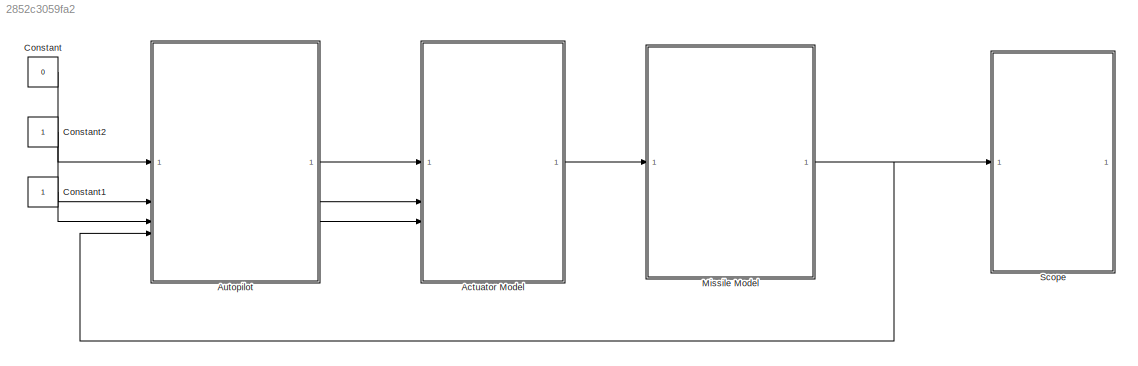
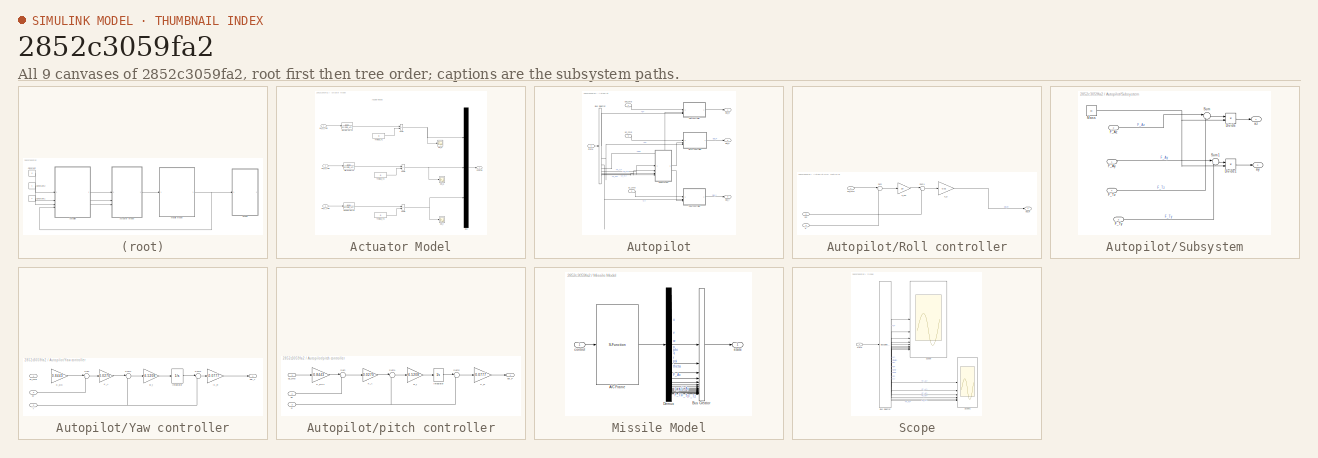
[diagram: thumbnail index - all 9 canvases of the model, root first then tree order]
MODEL slx_2852c3059fa2
KIND model
CONFIG AbsTol = auto
CONFIG EnableMultiTasking = off
CONFIG FixedStep = 0.01
CONFIG InitFcn = clc, clear, close all\nUAV_Data\nSim_Parameters
CONFIG MaxStep = auto
CONFIG MinStep = auto
CONFIG RelTol = 1e-3
CONFIG SampleTimeConstraint = Unconstrained
CONFIG SolverName = ode4
CONFIG StartTime = 0.0
CONFIG StopTime = 10.0
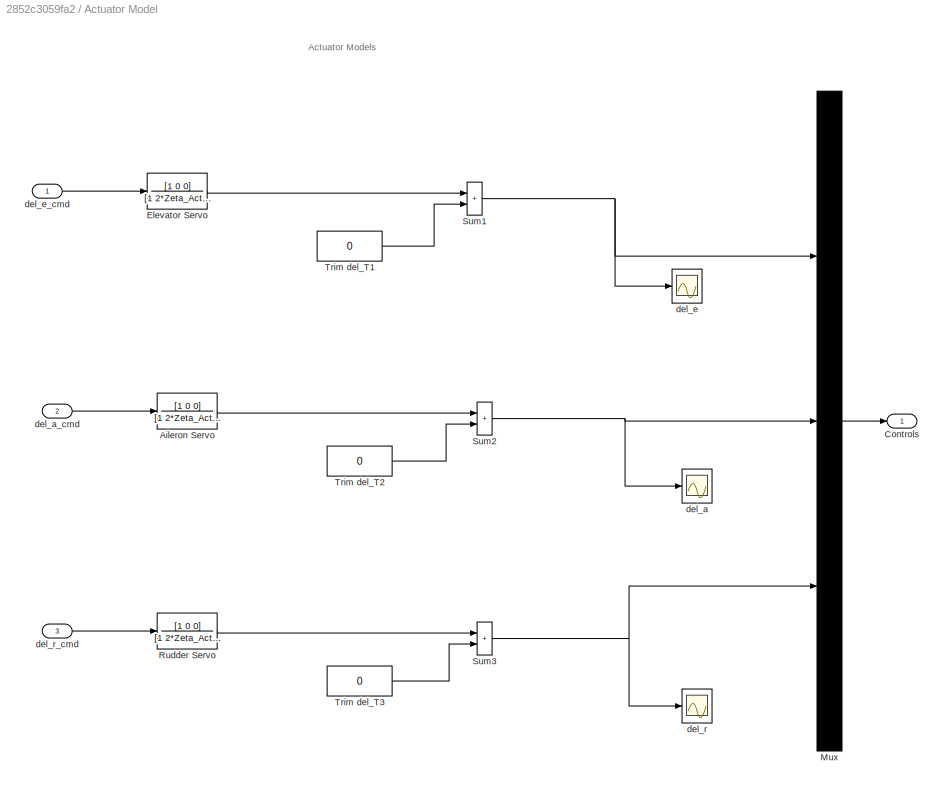
BLOCK [SubSystem] Actuator Model
BLOCK [TransferFcn] Actuator Model/Aileron Servo
  Denominator = [1 2*Zeta_Act*Wn_Act Wn_Act^2]
  Numerator = [1 0 0]
BLOCK [Outport] Actuator Model/Controls
BLOCK [TransferFcn] Actuator Model/Elevator Servo
  Denominator = [1 2*Zeta_Act*Wn_Act Wn_Act^2]
  Numerator = [1 0 0]
BLOCK [Mux] Actuator Model/Mux
  DisplayOption = bar
  Inputs = 3
BLOCK [TransferFcn] Actuator Model/Rudder Servo
  Denominator = [1 2*Zeta_Act*Wn_Act Wn_Act^2]
  Numerator = [1 0 0]
BLOCK [Sum] Actuator Model/Sum1
  IconShape = rectangular
  SaturateOnIntegerOverflow = on
BLOCK [Sum] Actuator Model/Sum2
  IconShape = rectangular
  SaturateOnIntegerOverflow = on
BLOCK [Sum] Actuator Model/Sum3
  IconShape = rectangular
  SaturateOnIntegerOverflow = on
BLOCK [Constant] Actuator Model/Trim del_T1
  Value = 0
BLOCK [Constant] Actuator Model/Trim del_T2
  Value = 0
BLOCK [Constant] Actuator Model/Trim del_T3
  Value = 0
BLOCK [Scope] Actuator Model/del_a
  Floating = off
  NumInputPorts = 1
  ScopeSpecificationString = Simulink.scopes.TimeScopeBlockCfg('CurrentConfiguration', extmgr.ConfigurationSet(extmgr.Configuration('Core','General UI',true),extmgr.Configuration('Core','Source UI',true),extmgr.Configuration('Sources','WiredSimulink',true,'DataLoggingVariableName','ScopeData3'),extmgr.Configuration('Visuals','Time Domain',true,'SerializedDisplays',{struct('MinYLimReal','-0.000008','MaxYLimReal','0.000039','YL...<+1371ch>
BLOCK [Inport] Actuator Model/del_a_cmd
  Port = 2
BLOCK [Scope] Actuator Model/del_e
  Floating = off
  NumInputPorts = 1
  ScopeSpecificationString = Simulink.scopes.TimeScopeBlockCfg('CurrentConfiguration', extmgr.ConfigurationSet(extmgr.Configuration('Core','General UI',true),extmgr.Configuration('Core','Source UI',true),extmgr.Configuration('Sources','WiredSimulink',true,'DataLoggingVariableName','ScopeData2'),extmgr.Configuration('Visuals','Time Domain',true,'SerializedDisplays',{struct('MinYLimReal','-1.00000','MaxYLimReal','1.00000','YLab...<+1363ch>
BLOCK [Inport] Actuator Model/del_e_cmd
BLOCK [Scope] Actuator Model/del_r
  Floating = off
  NumInputPorts = 1
  ScopeSpecificationString = Simulink.scopes.TimeScopeBlockCfg('CurrentConfiguration', extmgr.ConfigurationSet(extmgr.Configuration('Core','General UI',true),extmgr.Configuration('Core','Source UI',true),extmgr.Configuration('Sources','WiredSimulink',true,'DataLoggingVariableName','ScopeData4'),extmgr.Configuration('Visuals','Time Domain',true,'SerializedDisplays',{struct('MinYLimReal','-10','MaxYLimReal','10','YLabelReal',''...<+1317ch>
BLOCK [Inport] Actuator Model/del_r_cmd
  Port = 3
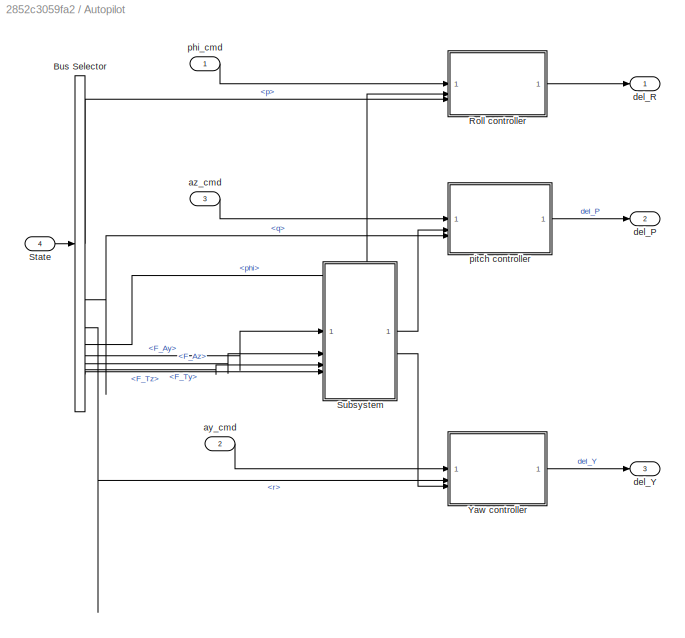
BLOCK [SubSystem] Autopilot
BLOCK [BusSelector] Autopilot/Bus Selector
  OutputSignals = p,q,r,phi,F_Ay,F_Az,F_Ty,F_Tz
BLOCK [SubSystem] Autopilot/Roll controller
BLOCK [Gain] Autopilot/Roll controller/K_p
  Gain = 0.01
BLOCK [Gain] Autopilot/Roll controller/K_phi
  Gain = 20
BLOCK [Sum] Autopilot/Roll controller/Sum
  Inputs = |+-
BLOCK [Sum] Autopilot/Roll controller/Sum1
  Inputs = |+-
BLOCK [Outport] Autopilot/Roll controller/del_R
BLOCK [Inport] Autopilot/Roll controller/p
  Port = 3
BLOCK [Inport] Autopilot/Roll controller/phi
  Port = 2
BLOCK [Inport] Autopilot/Roll controller/phi_cmd
BLOCK [Inport] Autopilot/State
  Port = 4
BLOCK [SubSystem] Autopilot/Subsystem
BLOCK [Product] Autopilot/Subsystem/Divide
  Inputs = */
BLOCK [Product] Autopilot/Subsystem/Divide1
  Inputs = */
BLOCK [Inport] Autopilot/Subsystem/F_Ay
BLOCK [Inport] Autopilot/Subsystem/F_Az
  Port = 2
BLOCK [Inport] Autopilot/Subsystem/F_Ty
  Port = 3
BLOCK [Inport] Autopilot/Subsystem/F_Tz
  Port = 4
BLOCK [Constant] Autopilot/Subsystem/Mass
  Value = 30
BLOCK [Sum] Autopilot/Subsystem/Sum
  Inputs = |++
BLOCK [Sum] Autopilot/Subsystem/Sum1
  Inputs = |++
BLOCK [Outport] Autopilot/Subsystem/ay
  Port = 2
BLOCK [Outport] Autopilot/Subsystem/az
BLOCK [SubSystem] Autopilot/Yaw controller
BLOCK [Gain] Autopilot/Yaw controller/-K_R
  Gain = -0.0777
BLOCK [Integrator] Autopilot/Yaw controller/Integrator
BLOCK [Gain] Autopilot/Yaw controller/K_A
  Gain = 0.0270
BLOCK [Gain] Autopilot/Yaw controller/K_DC
  Gain = 0.8443
BLOCK [Sum] Autopilot/Yaw controller/Sum
  Inputs = |+-
BLOCK [Sum] Autopilot/Yaw controller/Sum1
  Inputs = |--
BLOCK [Sum] Autopilot/Yaw controller/Sum2
  Inputs = |+-
BLOCK [Inport] Autopilot/Yaw controller/ay
  Port = 3
BLOCK [Inport] Autopilot/Yaw controller/ay_cmd
BLOCK [Outport] Autopilot/Yaw controller/del_Y
BLOCK [Inport] Autopilot/Yaw controller/r
  Port = 2
BLOCK [Gain] Autopilot/Yaw controller/w_i
  Gain = -6.5208
BLOCK [Inport] Autopilot/ay_cmd
  Port = 2
BLOCK [Inport] Autopilot/az_cmd
  Port = 3
BLOCK [Outport] Autopilot/del_P
  Port = 2
BLOCK [Outport] Autopilot/del_R
BLOCK [Outport] Autopilot/del_Y
  Port = 3
BLOCK [Inport] Autopilot/phi_cmd
BLOCK [SubSystem] Autopilot/pitch controller
BLOCK [Integrator] Autopilot/pitch controller/Integrator
BLOCK [Gain] Autopilot/pitch controller/K_A
  Gain = 0.0270
BLOCK [Gain] Autopilot/pitch controller/K_DC1
  Gain = 0.8443
BLOCK [Gain] Autopilot/pitch controller/K_R
  Gain = 0.0777
BLOCK [Sum] Autopilot/pitch controller/Sum
  Inputs = |+-
BLOCK [Sum] Autopilot/pitch controller/Sum1
  Inputs = |-+
BLOCK [Sum] Autopilot/pitch controller/Sum2
  Inputs = |++
BLOCK [Inport] Autopilot/pitch controller/az
  Port = 2
BLOCK [Inport] Autopilot/pitch controller/az_cmd
BLOCK [Outport] Autopilot/pitch controller/del_P
BLOCK [Inport] Autopilot/pitch controller/q
  Port = 3
BLOCK [Gain] Autopilot/pitch controller/w_i
  Gain = -6.5208
BLOCK [Constant] Constant
  Value = 0
BLOCK [Constant] Constant1
BLOCK [Constant] Constant2
BLOCK [SubSystem] Missile Model
BLOCK [S-Function] Missile Model/A//C Frame
  EnableBusSupport = off
  FunctionName = UAV_EoM_2
  SFcnIsStateOwnerBlock = off
  SFunctionDeploymentMode = off
BLOCK [BusCreator] Missile Model/Bus Creator
  DisplayOption = bar
  InheritFromInputs = on
  Inputs = 15
BLOCK [Demux] Missile Model/Demux
  Outputs = 15
BLOCK [Inport] Missile Model/control
BLOCK [Outport] Missile Model/state
BLOCK [SubSystem] Scope
BLOCK [BusSelector] Scope/Bus Selector
  OutputSignals = u,v,w,p,q,r,phi,theta,psi,F_Ax,F_Ay,F_Az,F_Tx,F_Ty,F_Tz
BLOCK [Scope] Scope/Scope
  Floating = off
  NumInputPorts = 9
  ScopeSpecificationString = Simulink.scopes.TimeScopeBlockCfg('CurrentConfiguration', extmgr.ConfigurationSet(extmgr.Configuration('Core','General UI',true),extmgr.Configuration('Core','Source UI',true),extmgr.Configuration('Sources','WiredSimulink',true,'DataLoggingVariableName','ScopeData1'),extmgr.Configuration('Visuals','Time Domain',true,'SerializedDisplays',{struct('MinYLimReal','237.75089','MaxYLimReal','240.24203','Y...<+6927ch>
BLOCK [Scope] Scope/Scope1
  Floating = off
  NumInputPorts = 6
  ScopeSpecificationString = Simulink.scopes.TimeScopeBlockCfg('CurrentConfiguration', extmgr.ConfigurationSet(extmgr.Configuration('Core','General UI',true),extmgr.Configuration('Core','Source UI',true),extmgr.Configuration('Sources','WiredSimulink',true,'DataLoggingVariableName','ScopeData2'),extmgr.Configuration('Visuals','Time Domain',true,'SerializedDisplays',{struct('MinYLimReal','-0.90633','MaxYLimReal','0.1007','YLabe...<+4887ch>
BLOCK [Inport] Scope/state
ANNOTATION Actuator Model: Actuator Models
LINE Actuator Model/Aileron Servo:1 -> Actuator Model/Sum2:1
LINE Actuator Model/Elevator Servo:1 -> Actuator Model/Sum1:1
LINE Actuator Model/Mux:1 -> Actuator Model/Controls:1
LINE Actuator Model/Rudder Servo:1 -> Actuator Model/Sum3:1
NET Actuator Model/Sum1:1 -> Actuator Model/Mux:1, Actuator Model/del_e:1
NET Actuator Model/Sum2:1 -> Actuator Model/Mux:2, Actuator Model/del_a:1
NET Actuator Model/Sum3:1 -> Actuator Model/Mux:3, Actuator Model/del_r:1
LINE Actuator Model/Trim del_T1:1 -> Actuator Model/Sum1:2
LINE Actuator Model/Trim del_T2:1 -> Actuator Model/Sum2:2
LINE Actuator Model/Trim del_T3:1 -> Actuator Model/Sum3:2
LINE Actuator Model/del_a_cmd:1 -> Actuator Model/Aileron Servo:1
LINE Actuator Model/del_e_cmd:1 -> Actuator Model/Elevator Servo:1
LINE Actuator Model/del_r_cmd:1 -> Actuator Model/Rudder Servo:1
LINE Actuator Model:1 -> Missile Model:1
LINE Autopilot/Bus Selector:1 -> Autopilot/Roll controller:3
LINE Autopilot/Bus Selector:2 -> Autopilot/pitch controller:3
LINE Autopilot/Bus Selector:3 -> Autopilot/Yaw controller:2
LINE Autopilot/Bus Selector:4 -> Autopilot/Roll controller:2
LINE Autopilot/Bus Selector:5 -> Autopilot/Subsystem:1
LINE Autopilot/Bus Selector:6 -> Autopilot/Subsystem:2
LINE Autopilot/Bus Selector:7 -> Autopilot/Subsystem:3
LINE Autopilot/Bus Selector:8 -> Autopilot/Subsystem:4
LINE Autopilot/Roll controller/K_p:1 -> Autopilot/Roll controller/del_R:1
LINE Autopilot/Roll controller/K_phi:1 -> Autopilot/Roll controller/Sum1:1
LINE Autopilot/Roll controller/Sum1:1 -> Autopilot/Roll controller/K_p:1
LINE Autopilot/Roll controller/Sum:1 -> Autopilot/Roll controller/K_phi:1
LINE Autopilot/Roll controller/p:1 -> Autopilot/Roll controller/Sum:2
LINE Autopilot/Roll controller/phi:1 -> Autopilot/Roll controller/Sum1:2
LINE Autopilot/Roll controller/phi_cmd:1 -> Autopilot/Roll controller/Sum:1
LINE Autopilot/Roll controller:1 -> Autopilot/del_R:1
LINE Autopilot/State:1 -> Autopilot/Bus Selector:1
LINE Autopilot/Subsystem/Divide1:1 -> Autopilot/Subsystem/ay:1
LINE Autopilot/Subsystem/Divide:1 -> Autopilot/Subsystem/az:1
LINE Autopilot/Subsystem/F_Ay:1 -> Autopilot/Subsystem/Sum1:1
LINE Autopilot/Subsystem/F_Az:1 -> Autopilot/Subsystem/Sum:1
LINE Autopilot/Subsystem/F_Ty:1 -> Autopilot/Subsystem/Sum1:2
LINE Autopilot/Subsystem/F_Tz:1 -> Autopilot/Subsystem/Sum:2
NET Autopilot/Subsystem/Mass:1 -> Autopilot/Subsystem/Divide1:2, Autopilot/Subsystem/Divide:2
LINE Autopilot/Subsystem/Sum1:1 -> Autopilot/Subsystem/Divide1:1
LINE Autopilot/Subsystem/Sum:1 -> Autopilot/Subsystem/Divide:1
LINE Autopilot/Subsystem:1 -> Autopilot/pitch controller:2
LINE Autopilot/Subsystem:2 -> Autopilot/Yaw controller:3
LINE Autopilot/Yaw controller/-K_R:1 -> Autopilot/Yaw controller/del_Y:1
LINE Autopilot/Yaw controller/Integrator:1 -> Autopilot/Yaw controller/Sum2:1
LINE Autopilot/Yaw controller/K_A:1 -> Autopilot/Yaw controller/Sum1:1
LINE Autopilot/Yaw controller/K_DC:1 -> Autopilot/Yaw controller/Sum:1
LINE Autopilot/Yaw controller/Sum1:1 -> Autopilot/Yaw controller/w_i:1
LINE Autopilot/Yaw controller/Sum2:1 -> Autopilot/Yaw controller/-K_R:1
LINE Autopilot/Yaw controller/Sum:1 -> Autopilot/Yaw controller/K_A:1
LINE Autopilot/Yaw controller/ay:1 -> Autopilot/Yaw controller/Sum:2
NET Autopilot/Yaw controller/r:1 -> Autopilot/Yaw controller/Sum1:2, Autopilot/Yaw controller/Sum2:2
LINE Autopilot/Yaw controller/w_i:1 -> Autopilot/Yaw controller/Integrator:1
LINE Autopilot/Yaw controller:1 -> Autopilot/del_Y:1
LINE Autopilot/ay_cmd:1 -> Autopilot/Yaw controller:1
LINE Autopilot/az_cmd:1 -> Autopilot/pitch controller:1
LINE Autopilot/phi_cmd:1 -> Autopilot/Roll controller:1
LINE Autopilot/pitch controller/Integrator:1 -> Autopilot/pitch controller/Sum2:1
LINE Autopilot/pitch controller/K_A:1 -> Autopilot/pitch controller/Sum1:1
LINE Autopilot/pitch controller/K_DC1:1 -> Autopilot/pitch controller/Sum:1
LINE Autopilot/pitch controller/K_R:1 -> Autopilot/pitch controller/del_P:1
LINE Autopilot/pitch controller/Sum1:1 -> Autopilot/pitch controller/w_i:1
LINE Autopilot/pitch controller/Sum2:1 -> Autopilot/pitch controller/K_R:1
LINE Autopilot/pitch controller/Sum:1 -> Autopilot/pitch controller/K_A:1
LINE Autopilot/pitch controller/az:1 -> Autopilot/pitch controller/Sum:2
LINE Autopilot/pitch controller/az_cmd:1 -> Autopilot/pitch controller/K_DC1:1
NET Autopilot/pitch controller/q:1 -> Autopilot/pitch controller/Sum1:2, Autopilot/pitch controller/Sum2:2
LINE Autopilot/pitch controller/w_i:1 -> Autopilot/pitch controller/Integrator:1
LINE Autopilot/pitch controller:1 -> Autopilot/del_P:1
LINE Autopilot:1 -> Actuator Model:1
LINE Autopilot:2 -> Actuator Model:2
LINE Autopilot:3 -> Actuator Model:3
LINE Constant1:1 -> Autopilot:3
LINE Constant2:1 -> Autopilot:2
LINE Constant:1 -> Autopilot:1
LINE Missile Model/A//C Frame:1 -> Missile Model/Demux:1
LINE Missile Model/Bus Creator:1 -> Missile Model/state:1
LINE Missile Model/Demux:1 -> Missile Model/Bus Creator:1
LINE Missile Model/Demux:10 -> Missile Model/Bus Creator:10
LINE Missile Model/Demux:11 -> Missile Model/Bus Creator:11
LINE Missile Model/Demux:12 -> Missile Model/Bus Creator:12
LINE Missile Model/Demux:13 -> Missile Model/Bus Creator:13
LINE Missile Model/Demux:14 -> Missile Model/Bus Creator:14
LINE Missile Model/Demux:15 -> Missile Model/Bus Creator:15
LINE Missile Model/Demux:2 -> Missile Model/Bus Creator:2
LINE Missile Model/Demux:3 -> Missile Model/Bus Creator:3
LINE Missile Model/Demux:4 -> Missile Model/Bus Creator:4
LINE Missile Model/Demux:5 -> Missile Model/Bus Creator:5
LINE Missile Model/Demux:6 -> Missile Model/Bus Creator:6
LINE Missile Model/Demux:7 -> Missile Model/Bus Creator:7
LINE Missile Model/Demux:8 -> Missile Model/Bus Creator:8
LINE Missile Model/Demux:9 -> Missile Model/Bus Creator:9
LINE Missile Model/control:1 -> Missile Model/A//C Frame:1
NET Missile Model:1 -> Autopilot:4, Scope:1
LINE Scope/Bus Selector:1 -> Scope/Scope:1
LINE Scope/Bus Selector:10 -> Scope/Scope1:1
LINE Scope/Bus Selector:11 -> Scope/Scope1:2
LINE Scope/Bus Selector:12 -> Scope/Scope1:3
LINE Scope/Bus Selector:13 -> Scope/Scope1:4
LINE Scope/Bus Selector:14 -> Scope/Scope1:5
LINE Scope/Bus Selector:15 -> Scope/Scope1:6
LINE Scope/Bus Selector:2 -> Scope/Scope:2
LINE Scope/Bus Selector:3 -> Scope/Scope:3
LINE Scope/Bus Selector:4 -> Scope/Scope:4
LINE Scope/Bus Selector:5 -> Scope/Scope:5
LINE Scope/Bus Selector:6 -> Scope/Scope:6
LINE Scope/Bus Selector:7 -> Scope/Scope:7
LINE Scope/Bus Selector:8 -> Scope/Scope:8
LINE Scope/Bus Selector:9 -> Scope/Scope:9
LINE Scope/state:1 -> Scope/Bus Selector:1
note: NET lines group one-source signal fan-out (src -> all destinations, sorted); 1:1 wires keep LINE
